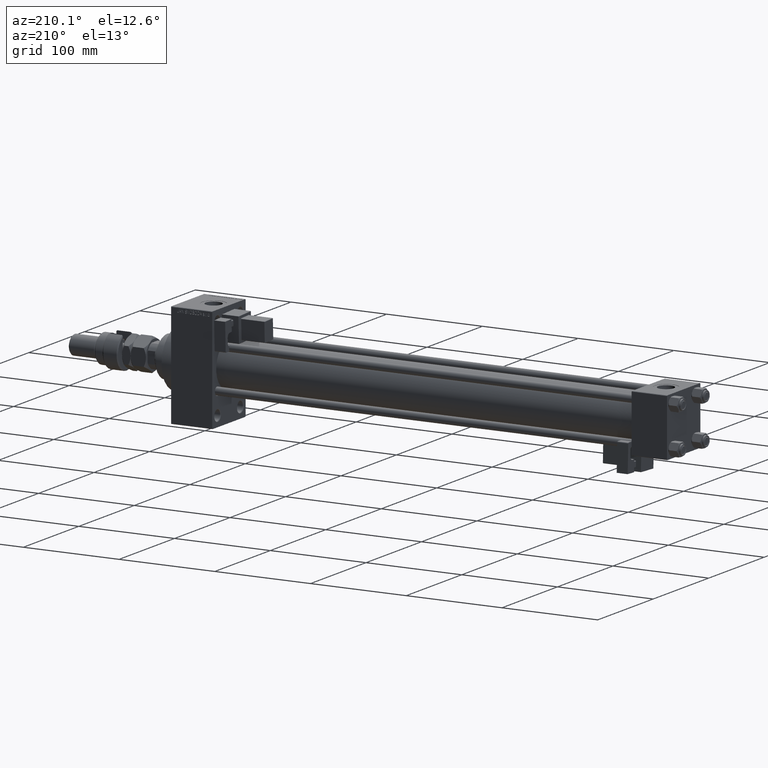
[diagram: clean part render]
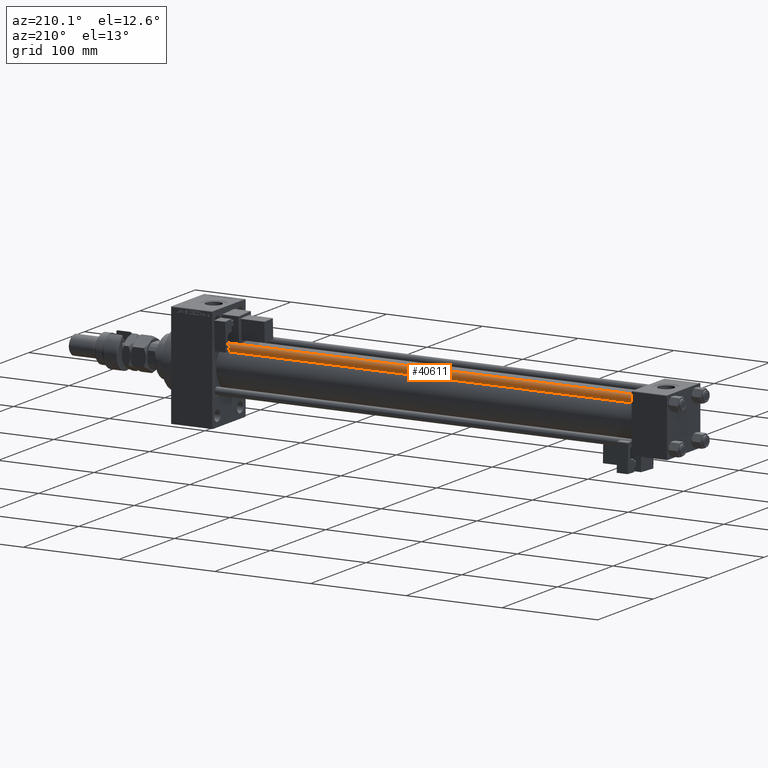
[diagram: same view with one face highlighted and labeled with its STEP entity id]
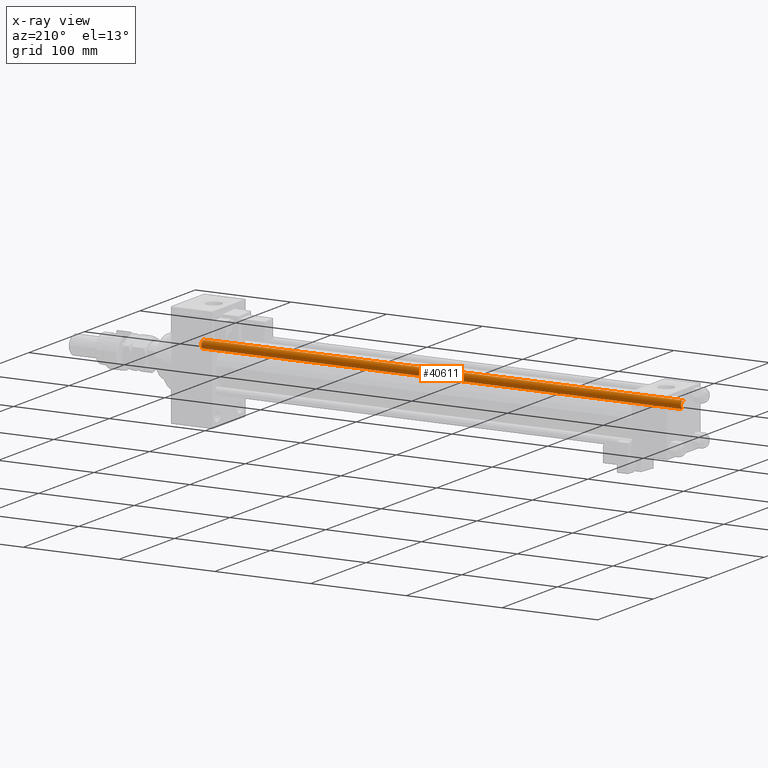
[diagram: x-ray of the same camera — body ghosted, the highlighted face saturated]
A machine part, auxiliary view. The second image highlights one B-rep face of the part: STEP entity #40611.
The next image is the same camera in x-ray: the body ghosted, the highlighted face saturated — about 0% of this face is hidden behind the body in this view.
In plain terms, the highlighted cylindrical surface (edge-blend (fillet) strip) has radius 4 mm, axis along (-1, -0, 0).
Its self-contained STEP definition (entity closure, byte-faithful):
#1844 = CIRCLE ( 'NONE', #6077, 4.000000000000000000 ) ;
#2101 = CARTESIAN_POINT ( 'NONE',  ( 0.000000000000000000, 0.000000000000000000, 0.4999999999999449329 ) ) ;
#3121 = DIRECTION ( 'NONE',  ( 0.000000000000000000, 0.000000000000000000, -1.000000000000000000 ) ) ;
#4885 = VERTEX_POINT ( 'NONE', #8879 ) ;
#6077 = AXIS2_PLACEMENT_3D ( 'NONE', #2101, #21240, #18287 ) ;
#8215 = CARTESIAN_POINT ( 'NONE',  ( -4.000000000000000000, 0.000000000000000000, 501.4999999999999432 ) ) ;
#8879 = CARTESIAN_POINT ( 'NONE',  ( 4.000000000000000000, 4.898587196589412829E-16, 501.4999999999999432 ) ) ;
#11861 = CARTESIAN_POINT ( 'NONE',  ( 0.000000000000000000, 0.000000000000000000, 501.4999999999999432 ) ) ;
#13667 = DIRECTION ( 'NONE',  ( -1.000000000000000000, 0.000000000000000000, 0.000000000000000000 ) ) ;
#17660 = DIRECTION ( 'NONE',  ( -0.000000000000000000, -0.000000000000000000, -1.000000000000000000 ) ) ;
#18287 = DIRECTION ( 'NONE',  ( 1.000000000000000000, 0.000000000000000000, 0.000000000000000000 ) ) ;
#19115 = EDGE_CURVE ( 'NONE', #45937, #4885, #40990, .T. ) ;
#20012 = LINE ( 'NONE', #23998, #44060 ) ;
#21240 = DIRECTION ( 'NONE',  ( -0.000000000000000000, -0.000000000000000000, 1.000000000000000000 ) ) ;
#21649 = CYLINDRICAL_SURFACE ( 'NONE', #33163, 4.000000000000000000 ) ;
#22959 = CARTESIAN_POINT ( 'NONE',  ( 4.000000000000000000, 4.898587196589412829E-16, 0.4999999999999449329 ) ) ;
#23998 = CARTESIAN_POINT ( 'NONE',  ( -4.000000000000000000, 0.000000000000000000, 502.0000000000000000 ) ) ;
#25853 = ORIENTED_EDGE ( 'NONE', *, *, #34398, .F. ) ;
#25960 = EDGE_CURVE ( 'NONE', #4885, #46284, #46923, .T. ) ;
#26416 = FACE_OUTER_BOUND ( 'NONE', #45926, .T. ) ;
#29908 = CARTESIAN_POINT ( 'NONE',  ( 4.000000000000000000, 4.898587196589412829E-16, 502.0000000000000000 ) ) ;
#31645 = AXIS2_PLACEMENT_3D ( 'NONE', #11861, #3121, #39493 ) ;
#33163 = AXIS2_PLACEMENT_3D ( 'NONE', #37856, #17660, #13667 ) ;
#33268 = DIRECTION ( 'NONE',  ( -0.000000000000000000, -0.000000000000000000, -1.000000000000000000 ) ) ;
#33821 = VERTEX_POINT ( 'NONE', #34473 ) ;
#34398 = EDGE_CURVE ( 'NONE', #45937, #33821, #20012, .T. ) ;
#34473 = CARTESIAN_POINT ( 'NONE',  ( -4.000000000000000000, 0.000000000000000000, 0.4999999999999449329 ) ) ;
#37856 = CARTESIAN_POINT ( 'NONE',  ( 0.000000000000000000, 0.000000000000000000, 502.0000000000000000 ) ) ;
#39493 = DIRECTION ( 'NONE',  ( 1.000000000000000000, 0.000000000000000000, 0.000000000000000000 ) ) ;
#39609 = VECTOR ( 'NONE', #42924, 1000.000000000000000 ) ;
#40219 = ORIENTED_EDGE ( 'NONE', *, *, #42702, .T. ) ;
#40611 = ADVANCED_FACE ( 'NONE', ( #26416 ), #21649, .T. ) ;
#40990 = CIRCLE ( 'NONE', #31645, 4.000000000000000000 ) ;
#42702 = EDGE_CURVE ( 'NONE', #46284, #33821, #1844, .T. ) ;
#42924 = DIRECTION ( 'NONE',  ( -0.000000000000000000, -0.000000000000000000, -1.000000000000000000 ) ) ;
#43098 = ORIENTED_EDGE ( 'NONE', *, *, #25960, .T. ) ;
#44060 = VECTOR ( 'NONE', #33268, 1000.000000000000000 ) ;
#45926 = EDGE_LOOP ( 'NONE', ( #50493, #43098, #40219, #25853 ) ) ;
#45937 = VERTEX_POINT ( 'NONE', #8215 ) ;
#46284 = VERTEX_POINT ( 'NONE', #22959 ) ;
#46923 = LINE ( 'NONE', #29908, #39609 ) ;
#50493 = ORIENTED_EDGE ( 'NONE', *, *, #19115, .T. ) ;